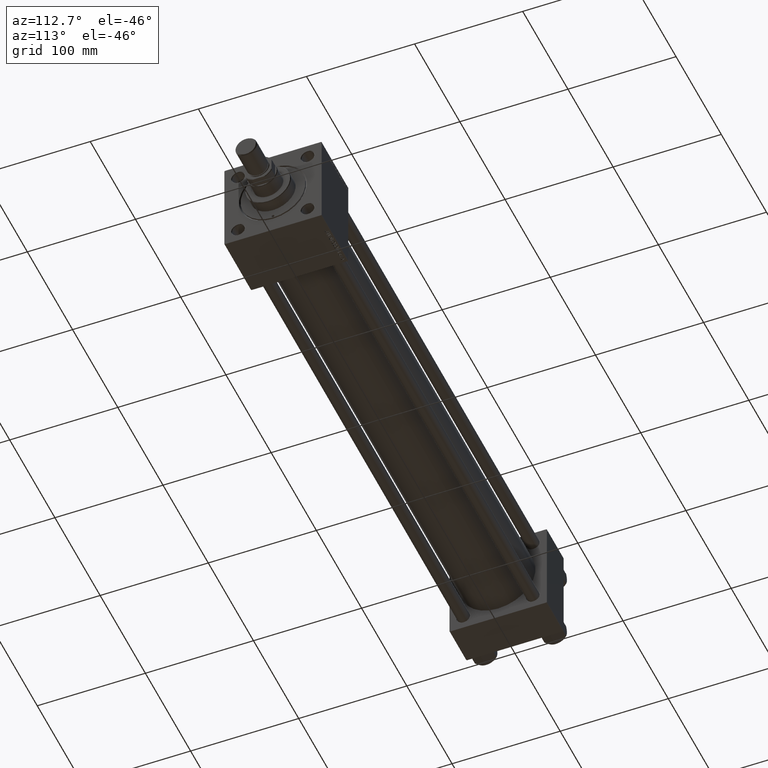
[diagram: clean part render]
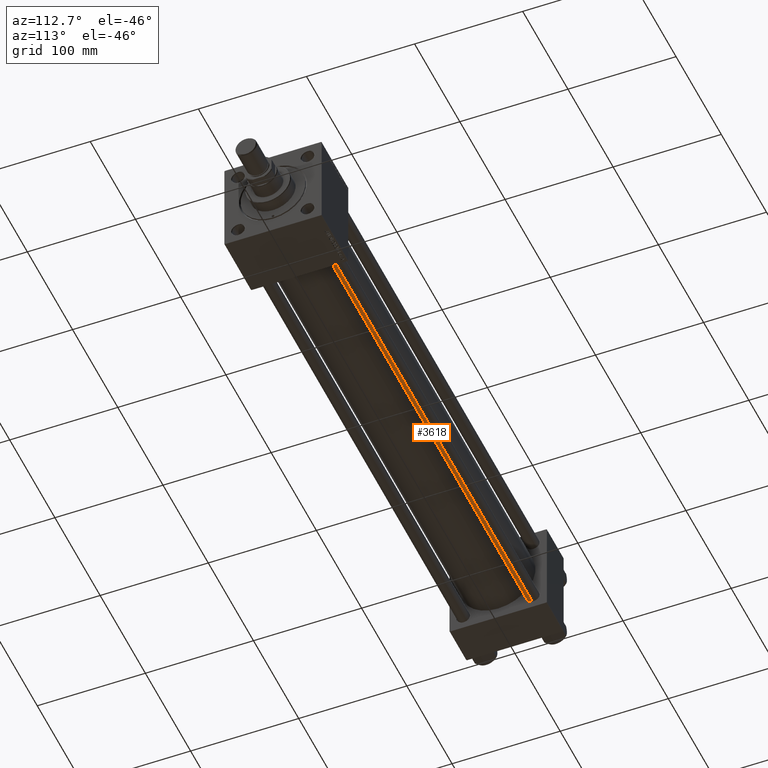
[diagram: same view with one face highlighted and labeled with its STEP entity id]
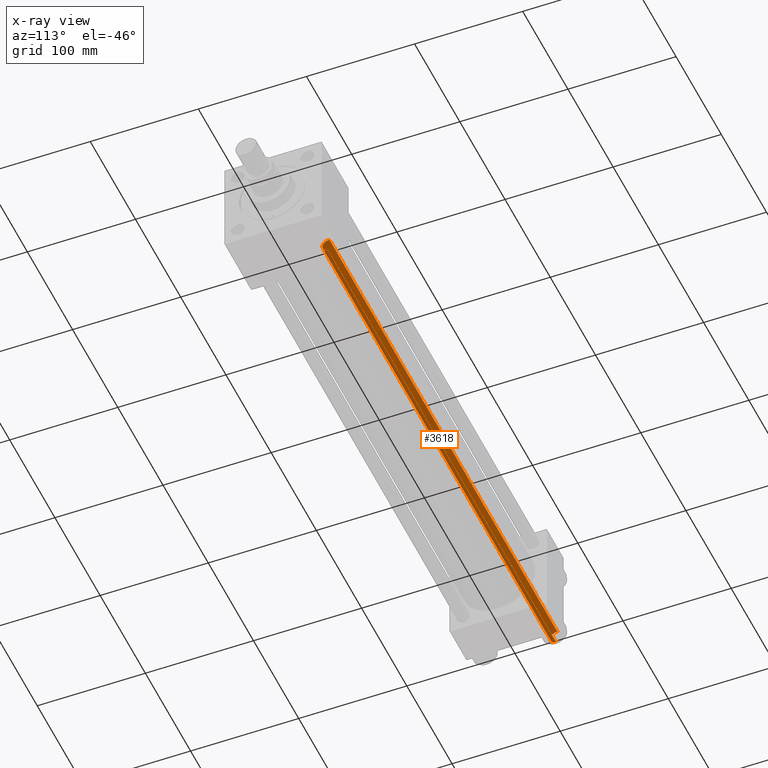
[diagram: x-ray of the same camera — body ghosted, the highlighted face saturated]
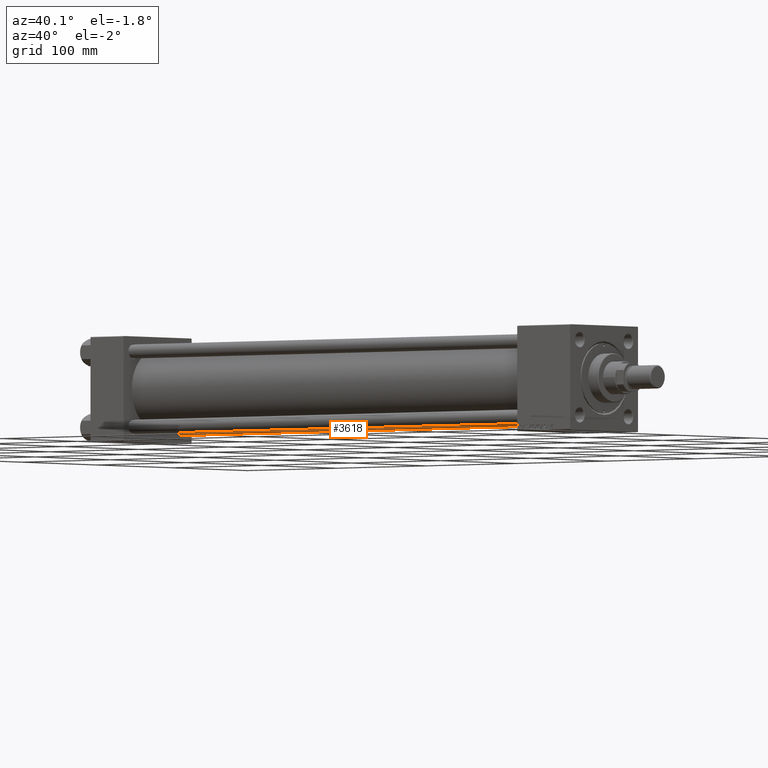
[diagram: same view with one face highlighted and labeled with its STEP entity id]
A machine part, auxiliary view. The second image highlights one B-rep face of the part: STEP entity #3618.
The next image is the same camera in x-ray: the body ghosted, the highlighted face saturated — about 0% of this face is hidden behind the body in this view.
A second angle (auxiliary view) of the same face is appended — the face is thin or edge-on in the first view.
In plain terms, the highlighted cylindrical surface (edge-blend (fillet) strip) has radius 6 mm, axis along (1, -0, 0).
Its self-contained STEP definition (entity closure, byte-faithful):
#1103 = DIRECTION ( 'NONE',  ( 1.000000000000000000, 0.000000000000000000, 0.000000000000000000 ) ) ;
#1730 = VERTEX_POINT ( 'NONE', #18907 ) ;
#2468 = VERTEX_POINT ( 'NONE', #31097 ) ;
#3396 = DIRECTION ( 'NONE',  ( -0.000000000000000000, -0.000000000000000000, -1.000000000000000000 ) ) ;
#3618 = ADVANCED_FACE ( 'NONE', ( #4244 ), #27134, .T. ) ;
#3738 = CARTESIAN_POINT ( 'NONE',  ( 0.000000000000000000, 0.000000000000000000, 505.0000000000000000 ) ) ;
#4244 = FACE_OUTER_BOUND ( 'NONE', #22379, .T. ) ;
#4286 = AXIS2_PLACEMENT_3D ( 'NONE', #3738, #23781, #13168 ) ;
#5619 = CARTESIAN_POINT ( 'NONE',  ( 6.000000000000000888, 7.347880794884120722E-16, 504.5000000000001705 ) ) ;
#7603 = CARTESIAN_POINT ( 'NONE',  ( 0.000000000000000000, 0.000000000000000000, 0.5000000000000559552 ) ) ;
#9074 = DIRECTION ( 'NONE',  ( 0.000000000000000000, 0.000000000000000000, -1.000000000000000000 ) ) ;
#11715 = DIRECTION ( 'NONE',  ( 1.000000000000000000, 0.000000000000000000, 0.000000000000000000 ) ) ;
#12926 = CARTESIAN_POINT ( 'NONE',  ( 0.000000000000000000, 0.000000000000000000, 504.5000000000001705 ) ) ;
#13168 = DIRECTION ( 'NONE',  ( -1.000000000000000000, 0.000000000000000000, 0.000000000000000000 ) ) ;
#15240 = EDGE_CURVE ( 'NONE', #25355, #1730, #16022, .T. ) ;
#16022 = LINE ( 'NONE', #23239, #29972 ) ;
#17664 = ORIENTED_EDGE ( 'NONE', *, *, #15240, .F. ) ;
#18907 = CARTESIAN_POINT ( 'NONE',  ( 6.000000000000000888, 7.347880794884120722E-16, 0.5000000000000559552 ) ) ;
#20850 = ORIENTED_EDGE ( 'NONE', *, *, #41802, .T. ) ;
#20997 = CIRCLE ( 'NONE', #38238, 6.000000000000000888 ) ;
#21631 = VERTEX_POINT ( 'NONE', #41566 ) ;
#21758 = ORIENTED_EDGE ( 'NONE', *, *, #29679, .T. ) ;
#22379 = EDGE_LOOP ( 'NONE', ( #17664, #39809, #20850, #21758 ) ) ;
#23239 = CARTESIAN_POINT ( 'NONE',  ( 6.000000000000000888, 7.347880794884120722E-16, 505.0000000000000000 ) ) ;
#23781 = DIRECTION ( 'NONE',  ( -0.000000000000000000, -0.000000000000000000, -1.000000000000000000 ) ) ;
#25355 = VERTEX_POINT ( 'NONE', #5619 ) ;
#27056 = AXIS2_PLACEMENT_3D ( 'NONE', #7603, #31231, #11715 ) ;
#27134 = CYLINDRICAL_SURFACE ( 'NONE', #4286, 6.000000000000000888 ) ;
#27582 = DIRECTION ( 'NONE',  ( -0.000000000000000000, -0.000000000000000000, -1.000000000000000000 ) ) ;
#29679 = EDGE_CURVE ( 'NONE', #2468, #1730, #34419, .T. ) ;
#29972 = VECTOR ( 'NONE', #27582, 1000.000000000000000 ) ;
#31097 = CARTESIAN_POINT ( 'NONE',  ( -6.000000000000000888, 0.000000000000000000, 0.5000000000000559552 ) ) ;
#31231 = DIRECTION ( 'NONE',  ( -0.000000000000000000, -0.000000000000000000, 1.000000000000000000 ) ) ;
#31292 = EDGE_CURVE ( 'NONE', #25355, #21631, #20997, .T. ) ;
#34419 = CIRCLE ( 'NONE', #27056, 6.000000000000000888 ) ;
#35933 = VECTOR ( 'NONE', #3396, 1000.000000000000000 ) ;
#38238 = AXIS2_PLACEMENT_3D ( 'NONE', #12926, #9074, #1103 ) ;
#38342 = LINE ( 'NONE', #49936, #35933 ) ;
#39809 = ORIENTED_EDGE ( 'NONE', *, *, #31292, .T. ) ;
#41566 = CARTESIAN_POINT ( 'NONE',  ( -6.000000000000000888, 0.000000000000000000, 504.5000000000001705 ) ) ;
#41802 = EDGE_CURVE ( 'NONE', #21631, #2468, #38342, .T. ) ;
#49936 = CARTESIAN_POINT ( 'NONE',  ( -6.000000000000000888, 0.000000000000000000, 505.0000000000000000 ) ) ;